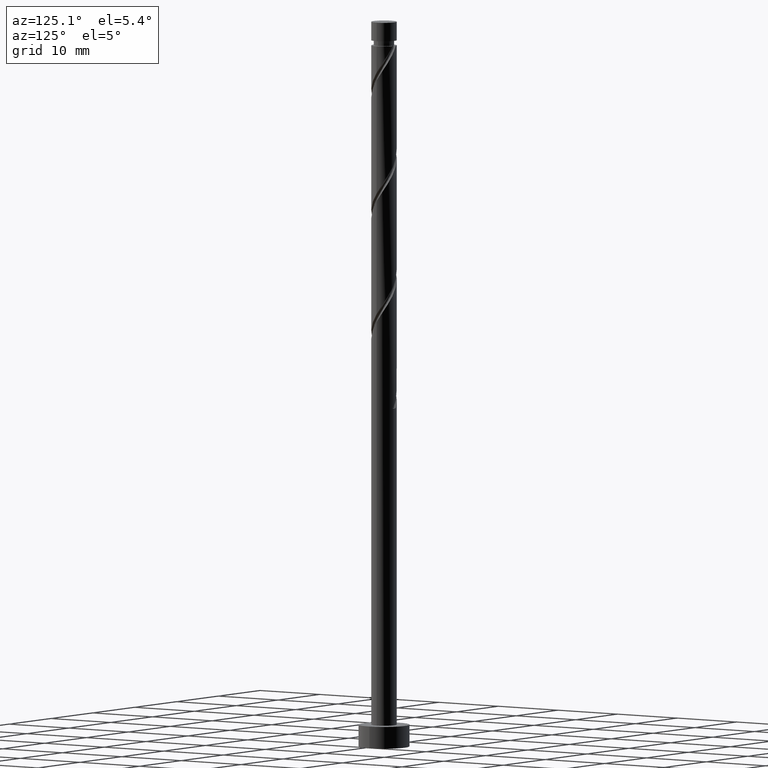
[diagram: clean part render]
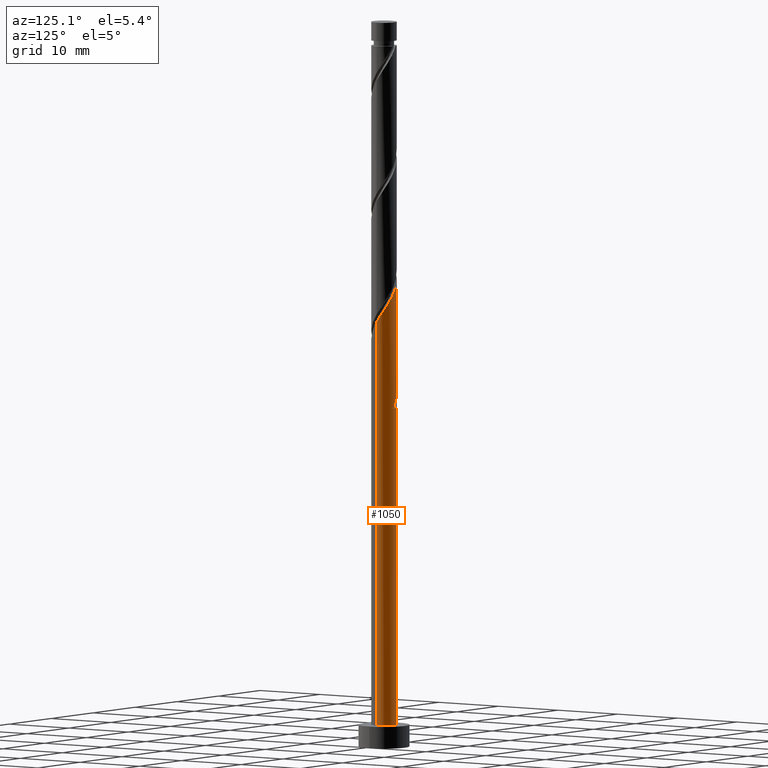
[diagram: same view with one face highlighted and labeled with its STEP entity id]
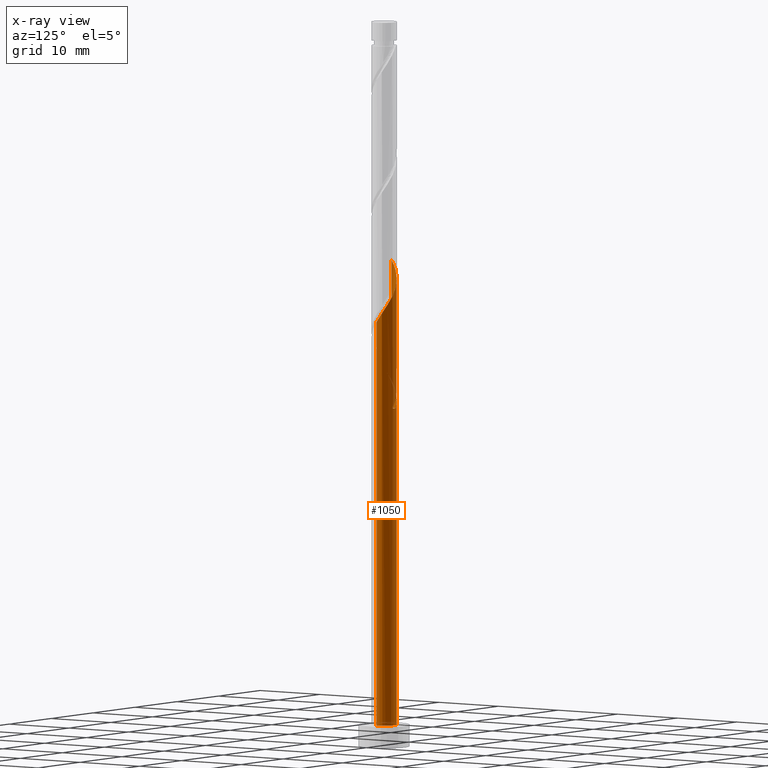
[diagram: x-ray of the same camera — body ghosted, the highlighted face saturated]
A machine part, auxiliary view. The second image highlights one B-rep face of the part: STEP entity #1050.
The next image is the same camera in x-ray: the body ghosted, the highlighted face saturated — about 0% of this face is hidden behind the body in this view.
In plain terms, the highlighted cylindrical surface (edge-blend (fillet) strip) has radius 1.75 mm, axis along (-0, -0, -1).
Its self-contained STEP definition (entity closure, byte-faithful):
#27 = AXIS2_PLACEMENT_3D ( 'NONE', #544, #1472, #872 ) ;
#29 = DIRECTION ( 'NONE',  ( -0.000000000000000000, -0.000000000000000000, -1.000000000000000000 ) ) ;
#59 = ORIENTED_EDGE ( 'NONE', *, *, #1075, .F. ) ;
#64 = CARTESIAN_POINT ( 'NONE',  ( 0.5644862759827036225, 1.684954615668427413, 62.02215954679992649 ) ) ;
#117 =( BOUNDED_CURVE ( )  B_SPLINE_CURVE ( 2, ( #1317, #284, #405, #1328, #1337, #1169, #367, #477, #952 ),
 .UNSPECIFIED., .F., .T. ) 
 B_SPLINE_CURVE_WITH_KNOTS ( ( 3, 2, 2, 2, 3 ),
 ( 0.000000000000000000, 0.01388888888888884128, 0.02777777777777779011, 0.04166666666666662966, 0.05452480538552893080 ),
 .UNSPECIFIED. ) 
 CURVE ( )  GEOMETRIC_REPRESENTATION_ITEM ( )  RATIONAL_B_SPLINE_CURVE ( ( 0.9090909090909143897, 0.8952797754656489637, 0.9090909090909143897, 0.8952797754656489637, 0.9090909090909143897, 0.8952797754656489637, 0.9090909090909143897, 0.8963047551055891571, 0.9071930855141263628 ) ) 
 REPRESENTATION_ITEM ( '' )  );
#125 = VERTEX_POINT ( 'NONE', #1065 ) ;
#130 = CARTESIAN_POINT ( 'NONE',  ( 0.000000000000000000, 0.000000000000000000, 46.74438176902215503 ) ) ;
#167 = CARTESIAN_POINT ( 'NONE',  ( -1.176970363401352637, 1.331336762922908257, 64.79993732457768374 ) ) ;
#171 = CARTESIAN_POINT ( 'NONE',  ( 0.3482456029873174930, 1.715000000000000080, 46.74438176902215503 ) ) ;
#173 = DIRECTION ( 'NONE',  ( -1.000000000000000000, 0.000000000000000000, 0.000000000000000000 ) ) ;
#184 =( BOUNDED_CURVE ( )  B_SPLINE_CURVE ( 2, ( #255, #609, #488, #1400, #1186, #1173, #1180, #618, #1201, #1424, #497, #1406, #171 ),
 .UNSPECIFIED., .F., .T. ) 
 B_SPLINE_CURVE_WITH_KNOTS ( ( 3, 2, 2, 2, 2, 2, 3 ),
 ( 0.9295248053855289516, 0.9305555555555555802, 0.9444444444444444198, 0.9583333333333333703, 0.9722222222222222099, 0.9861111111111111605, 1.000000000000000000 ),
 .UNSPECIFIED. ) 
 CURVE ( )  GEOMETRIC_REPRESENTATION_ITEM ( )  RATIONAL_B_SPLINE_CURVE ( ( 0.9071930855141209227, 0.9080659294509686452, 0.9090909090909088386, 0.8952797754656434126, 0.9090909090909088386, 0.8952797754656434126, 0.9090909090909088386, 0.8952797754656434126, 0.9090909090909088386, 0.8952797754656434126, 0.9090909090909088386, 0.8952797754656434126, 0.9090909090909088386 ) ) 
 REPRESENTATION_ITEM ( '' )  );
#214 = EDGE_LOOP ( 'NONE', ( #59, #1129, #1189, #578, #503, #1039, #329, #890 ) ) ;
#216 = VERTEX_POINT ( 'NONE', #1209 ) ;
#223 = EDGE_CURVE ( 'NONE', #125, #306, #117, .T. ) ;
#236 = VECTOR ( 'NONE', #29, 1000.000000000000000 ) ;
#238 = LINE ( 'NONE', #936, #536 ) ;
#255 = CARTESIAN_POINT ( 'NONE',  ( -1.750000000000000000, -8.141736768057110958E-16, 51.44190332401092292 ) ) ;
#258 = DIRECTION ( 'NONE',  ( -0.000000000000000000, -0.000000000000000000, -1.000000000000000000 ) ) ;
#284 = CARTESIAN_POINT ( 'NONE',  ( -0.6506463749023350118, 1.653594904280250022, 47.20734473198511694 ) ) ;
#298 = VERTEX_POINT ( 'NONE', #748 ) ;
#306 = VERTEX_POINT ( 'NONE', #1073 ) ;
#329 = ORIENTED_EDGE ( 'NONE', *, *, #1404, .F. ) ;
#353 = EDGE_CURVE ( 'NONE', #216, #298, #1082, .T. ) ;
#367 = CARTESIAN_POINT ( 'NONE',  ( -1.659356368983973207, 0.5559104610567547899, 49.52215954679994780 ) ) ;
#370 =( BOUNDED_CURVE ( )  B_SPLINE_CURVE ( 2, ( #964, #1409, #1414, #861, #1431, #632, #1092, #1182, #401, #64, #373, #1176, #868, #841, #507, #167, #386, #1190, #1419, #970, #1303 ),
 .UNSPECIFIED., .F., .T. ) 
 B_SPLINE_CURVE_WITH_KNOTS ( ( 3, 2, 2, 2, 2, 2, 2, 2, 2, 2, 3 ),
 ( 0.1795248053855291737, 0.1805555555555555802, 0.1944444444444444198, 0.2083333333333333703, 0.2222222222222222099, 0.2361111111111111605, 0.2500000000000000000, 0.2638888888888888395, 0.2777777777777777901, 0.2916666666666666297, 0.3045248053855290626 ),
 .UNSPECIFIED. ) 
 CURVE ( )  GEOMETRIC_REPRESENTATION_ITEM ( )  RATIONAL_B_SPLINE_CURVE ( ( 0.9071930855141269179, 0.9080659294509744184, 0.9090909090909143897, 0.8952797754656489637, 0.9090909090909143897, 0.8952797754656489637, 0.9090909090909143897, 0.8952797754656489637, 0.9090909090909143897, 0.8952797754656489637, 0.9090909090909143897, 0.8952797754656489637, 0.9090909090909143897, 0.8952797754656489637, 0.9090909090909143897, 0.8952797754656489637, 0.9090909090909143897, 0.8952797754656489637, 0.9090909090909143897, 0.8963047551055890461, 0.9071930855141266958 ) ) 
 REPRESENTATION_ITEM ( '' )  );
#373 = CARTESIAN_POINT ( 'NONE',  ( 0.2593207224552029344, 1.730679855694091218, 62.48512250976291682 ) ) ;
#386 = CARTESIAN_POINT ( 'NONE',  ( -1.369152359621468751, 1.089918261220984119, 65.26290028754068828 ) ) ;
#395 = CARTESIAN_POINT ( 'NONE',  ( -1.750000000000001998, 1.277281639759410658E-15, 67.04686021403340135 ) ) ;
#401 = CARTESIAN_POINT ( 'NONE',  ( 0.8356091416033648578, 1.537614178677114474, 61.55919658383697168 ) ) ;
#405 = CARTESIAN_POINT ( 'NONE',  ( -0.9138083691518439355, 1.492465833601579694, 47.67030769494809306 ) ) ;
#406 = VERTEX_POINT ( 'NONE', #395 ) ;
#460 = LINE ( 'NONE', #470, #750 ) ;
#470 = CARTESIAN_POINT ( 'NONE',  ( -1.750000000000000000, 0.000000000000000000, 100.0000000000000000 ) ) ;
#477 = CARTESIAN_POINT ( 'NONE',  ( -1.750000000000001776, 0.2853451506858027953, 49.95027403500109386 ) ) ;
#488 = CARTESIAN_POINT ( 'NONE',  ( -1.749417510755205463, 0.04514834507553568133, 51.37401139865178124 ) ) ;
#497 = CARTESIAN_POINT ( 'NONE',  ( -0.2593207224552009915, 1.730679855694088776, 47.67030769494808595 ) ) ;
#499 = CARTESIAN_POINT ( 'NONE',  ( 0.000000000000000000, 0.000000000000000000, 100.0000000000000000 ) ) ;
#503 = ORIENTED_EDGE ( 'NONE', *, *, #223, .F. ) ;
#507 = CARTESIAN_POINT ( 'NONE',  ( -0.9138083691518439355, 1.492465833601579694, 64.33697436161475025 ) ) ;
#512 = AXIS2_PLACEMENT_3D ( 'NONE', #499, #258, #173 ) ;
#536 = VECTOR ( 'NONE', #814, 1000.000000000000000 ) ;
#544 = CARTESIAN_POINT ( 'NONE',  ( 0.000000000000000000, 0.000000000000000000, 3.000000000000000000 ) ) ;
#578 = ORIENTED_EDGE ( 'NONE', *, *, #791, .F. ) ;
#609 = CARTESIAN_POINT ( 'NONE',  ( -1.749999999999999556, 0.02257793008103411991, 51.40788595007855122 ) ) ;
#618 = CARTESIAN_POINT ( 'NONE',  ( -1.106732007224024539, 1.390273741685799092, 49.05919658383698589 ) ) ;
#632 = CARTESIAN_POINT ( 'NONE',  ( 1.515489524769286112, 0.9279053362006939309, 60.17030769494806464 ) ) ;
#633 = VERTEX_POINT ( 'NONE', #991 ) ;
#694 = DIRECTION ( 'NONE',  ( -1.000000000000000000, 0.000000000000000000, 0.000000000000000000 ) ) ;
#748 = CARTESIAN_POINT ( 'NONE',  ( -1.750000000000000000, 0.000000000000000000, 3.000000000000000000 ) ) ;
#750 = VECTOR ( 'NONE', #1162, 1000.000000000000000 ) ;
#756 = CYLINDRICAL_SURFACE ( 'NONE', #512, 1.750000000000000000 ) ;
#791 = EDGE_CURVE ( 'NONE', #306, #298, #238, .T. ) ;
#814 = DIRECTION ( 'NONE',  ( -0.000000000000000000, -0.000000000000000000, -1.000000000000000000 ) ) ;
#830 = EDGE_CURVE ( 'NONE', #125, #633, #1171, .T. ) ;
#841 = CARTESIAN_POINT ( 'NONE',  ( -0.6506463749023350118, 1.653594904280250022, 63.87401139865175992 ) ) ;
#854 = FACE_OUTER_BOUND ( 'NONE', #214, .T. ) ;
#856 = EDGE_CURVE ( 'NONE', #1079, #216, #1268, .T. ) ;
#861 = CARTESIAN_POINT ( 'NONE',  ( 1.741456639384054927, 0.3536178527455195453, 59.24438176902214792 ) ) ;
#868 = CARTESIAN_POINT ( 'NONE',  ( -0.3482456029873168268, 1.715000000000002744, 63.41104843568882643 ) ) ;
#872 = DIRECTION ( 'NONE',  ( 1.000000000000000000, 0.000000000000000000, 0.000000000000000000 ) ) ;
#890 = ORIENTED_EDGE ( 'NONE', *, *, #895, .F. ) ;
#895 = EDGE_CURVE ( 'NONE', #406, #1463, #460, .T. ) ;
#936 = CARTESIAN_POINT ( 'NONE',  ( -1.750000000000000000, 0.000000000000000000, 100.0000000000000000 ) ) ;
#952 = CARTESIAN_POINT ( 'NONE',  ( -1.750000000000001998, 1.277281639759410855E-15, 50.38019354736671573 ) ) ;
#955 = CARTESIAN_POINT ( 'NONE',  ( -1.750000000000000000, -8.141736768057111944E-16, 51.44190332401092292 ) ) ;
#964 = CARTESIAN_POINT ( 'NONE',  ( 1.750000000000001998, -1.266077414849240326E-15, 58.71352688070007275 ) ) ;
#970 = CARTESIAN_POINT ( 'NONE',  ( -1.750000000000002887, 0.2853451506858000197, 66.61694070166775816 ) ) ;
#991 = CARTESIAN_POINT ( 'NONE',  ( 0.3482456029873174930, 1.715000000000000080, 46.74438176902215503 ) ) ;
#1039 = ORIENTED_EDGE ( 'NONE', *, *, #830, .T. ) ;
#1050 = ADVANCED_FACE ( 'NONE', ( #854 ), #756, .T. ) ;
#1065 = CARTESIAN_POINT ( 'NONE',  ( -0.3482456029873168268, 1.715000000000002522, 46.74438176902215503 ) ) ;
#1073 = CARTESIAN_POINT ( 'NONE',  ( -1.750000000000001998, 1.277281639759410658E-15, 50.38019354736671573 ) ) ;
#1075 = EDGE_CURVE ( 'NONE', #1079, #406, #370, .T. ) ;
#1079 = VERTEX_POINT ( 'NONE', #1296 ) ;
#1082 = CIRCLE ( 'NONE', #27, 1.750000000000000000 ) ;
#1092 = CARTESIAN_POINT ( 'NONE',  ( 1.311110765996656102, 1.159089538943248510, 60.63327065791104076 ) ) ;
#1129 = ORIENTED_EDGE ( 'NONE', *, *, #856, .T. ) ;
#1152 = DIRECTION ( 'NONE',  ( 0.000000000000000000, -0.000000000000000000, -1.000000000000000000 ) ) ;
#1162 = DIRECTION ( 'NONE',  ( -0.000000000000000000, -0.000000000000000000, -1.000000000000000000 ) ) ;
#1168 = CARTESIAN_POINT ( 'NONE',  ( 1.750000000000000000, 2.143131898507867804E-16, 100.0000000000000000 ) ) ;
#1169 = CARTESIAN_POINT ( 'NONE',  ( -1.561334355841584642, 0.8484997595190599817, 49.05919658383697168 ) ) ;
#1171 = CIRCLE ( 'NONE', #1246, 1.750000000000000000 ) ;
#1173 = CARTESIAN_POINT ( 'NONE',  ( -1.515489524769282781, 0.9279053362006941530, 49.98512250976289550 ) ) ;
#1176 = CARTESIAN_POINT ( 'NONE',  ( -0.04584483107229930798, 1.776405095719754357, 62.94808547272585741 ) ) ;
#1180 = CARTESIAN_POINT ( 'NONE',  ( -1.311110765996653438, 1.159089538943246733, 49.52215954679992649 ) ) ;
#1182 = CARTESIAN_POINT ( 'NONE',  ( 1.106732007224026537, 1.390273741685800868, 61.09623362087399556 ) ) ;
#1186 = CARTESIAN_POINT ( 'NONE',  ( -1.628473082076667966, 0.6407615944731067659, 50.44808547272585741 ) ) ;
#1189 = ORIENTED_EDGE ( 'NONE', *, *, #353, .T. ) ;
#1190 = CARTESIAN_POINT ( 'NONE',  ( -1.561334355841584642, 0.8484997595190599817, 65.72586325050363598 ) ) ;
#1201 = CARTESIAN_POINT ( 'NONE',  ( -0.8356091416033628594, 1.537614178677112475, 48.59623362087400267 ) ) ;
#1209 = CARTESIAN_POINT ( 'NONE',  ( 1.750000000000000000, 2.143131898507867804E-16, 3.000000000000000000 ) ) ;
#1246 = AXIS2_PLACEMENT_3D ( 'NONE', #130, #1152, #694 ) ;
#1268 = LINE ( 'NONE', #1168, #236 ) ;
#1296 = CARTESIAN_POINT ( 'NONE',  ( 1.750000000000001998, -1.266077414849240326E-15, 58.71352688070007275 ) ) ;
#1303 = CARTESIAN_POINT ( 'NONE',  ( -1.750000000000001998, 1.277281639759410658E-15, 67.04686021403340135 ) ) ;
#1317 = CARTESIAN_POINT ( 'NONE',  ( -0.3482456029873168268, 1.715000000000002522, 46.74438176902216213 ) ) ;
#1328 = CARTESIAN_POINT ( 'NONE',  ( -1.176970363401352637, 1.331336762922908257, 48.13327065791104076 ) ) ;
#1337 = CARTESIAN_POINT ( 'NONE',  ( -1.369152359621468751, 1.089918261220984119, 48.59623362087401688 ) ) ;
#1400 = CARTESIAN_POINT ( 'NONE',  ( -1.741456639384053151, 0.3536178527455197118, 50.91104843568883354 ) ) ;
#1404 = EDGE_CURVE ( 'NONE', #1463, #633, #184, .T. ) ;
#1406 = CARTESIAN_POINT ( 'NONE',  ( 0.04584483107229955084, 1.776405095719752136, 47.20734473198512404 ) ) ;
#1409 = CARTESIAN_POINT ( 'NONE',  ( 1.750000000000002220, 0.02257793008103864407, 58.74754425463243734 ) ) ;
#1414 = CARTESIAN_POINT ( 'NONE',  ( 1.749417510755208127, 0.04514834507553546622, 58.78141880605920022 ) ) ;
#1419 = CARTESIAN_POINT ( 'NONE',  ( -1.659356368983973207, 0.5559104610567547899, 66.18882621346661210 ) ) ;
#1424 = CARTESIAN_POINT ( 'NONE',  ( -0.5644862759827014020, 1.684954615668426081, 48.13327065791104076 ) ) ;
#1431 = CARTESIAN_POINT ( 'NONE',  ( 1.628473082076670631, 0.6407615944731066548, 59.70734473198513115 ) ) ;
#1463 = VERTEX_POINT ( 'NONE', #955 ) ;
#1472 = DIRECTION ( 'NONE',  ( 0.000000000000000000, 0.000000000000000000, 1.000000000000000000 ) ) ;